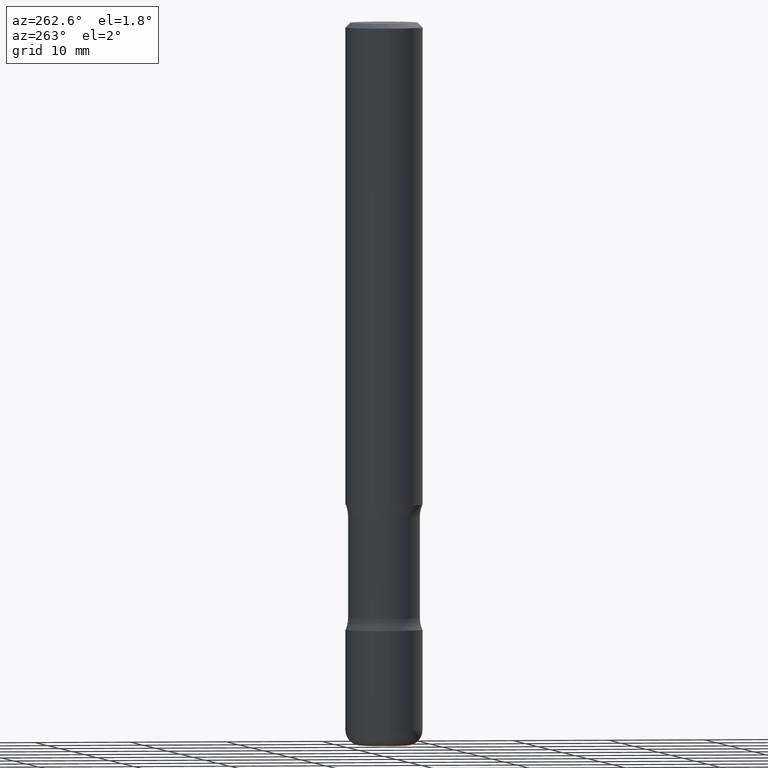
[diagram: clean part render]
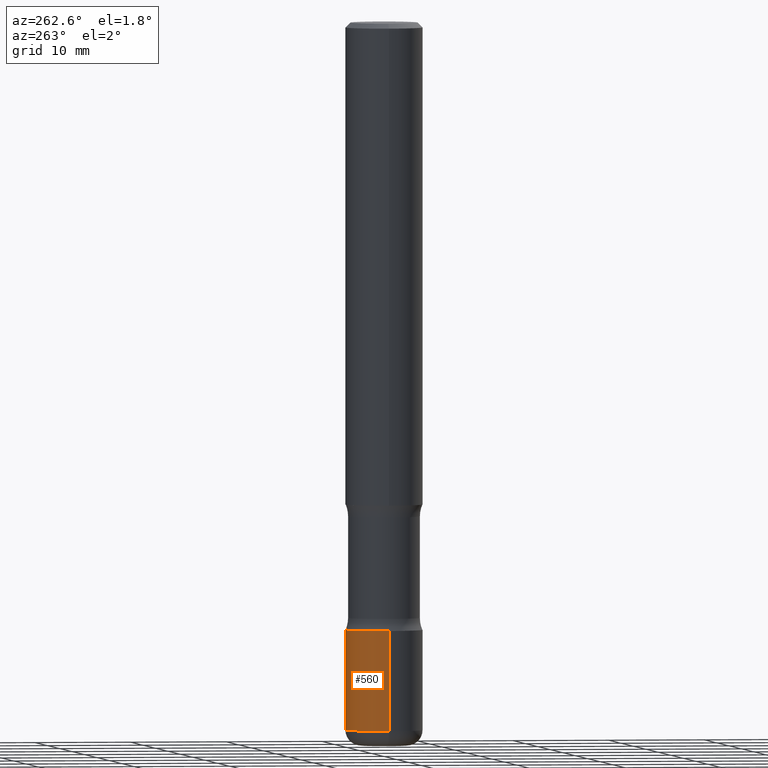
[diagram: same view with one face highlighted and labeled with its STEP entity id]
A machine part, auxiliary view. The second image highlights one B-rep face of the part: STEP entity #560.
In plain terms, the highlighted cylindrical surface (partial cylindrical patch) has radius 4.0005 mm, axis along (-0, 0, 1).
Its self-contained STEP definition (entity closure, byte-faithful):
#16 = CARTESIAN_POINT ( 'NONE',  ( 0.1575000000000003619, -1.118949939472451419E-14, -2.889800000000000590 ) ) ;
#19 = EDGE_CURVE ( 'NONE', #298, #250, #95, .T. ) ;
#40 = ORIENTED_EDGE ( 'NONE', *, *, #150, .T. ) ;
#48 = DIRECTION ( 'NONE',  ( 1.000000000000000000, -6.982962677686269866E-15, 0.000000000000000000 ) ) ;
#58 = FACE_OUTER_BOUND ( 'NONE', #142, .T. ) ;
#64 = VECTOR ( 'NONE', #397, 39.37007874015748143 ) ;
#68 = EDGE_CURVE ( 'NONE', #463, #298, #279, .T. ) ;
#71 = VERTEX_POINT ( 'NONE', #404 ) ;
#78 = AXIS2_PLACEMENT_3D ( 'NONE', #356, #265, #437 ) ;
#79 = DIRECTION ( 'NONE',  ( -2.445468806185136597E-29, 3.491481338843145583E-15, 1.000000000000000000 ) ) ;
#83 = CIRCLE ( 'NONE', #219, 0.1575000000000003897 ) ;
#93 = EDGE_CURVE ( 'NONE', #463, #71, #83, .T. ) ;
#95 = CIRCLE ( 'NONE', #123, 0.1575000000000003619 ) ;
#123 = AXIS2_PLACEMENT_3D ( 'NONE', #353, #136, #48 ) ;
#136 = DIRECTION ( 'NONE',  ( -2.445468806185136597E-29, 3.491481338843145583E-15, 1.000000000000000000 ) ) ;
#142 = EDGE_LOOP ( 'NONE', ( #510, #40, #163, #458 ) ) ;
#150 = EDGE_CURVE ( 'NONE', #71, #250, #485, .T. ) ;
#163 = ORIENTED_EDGE ( 'NONE', *, *, #19, .F. ) ;
#190 = CYLINDRICAL_SURFACE ( 'NONE', #78, 0.1575000000000003619 ) ;
#202 = CARTESIAN_POINT ( 'NONE',  ( 0.1575000000000003619, -1.099816621735589650E-15, 7.679978421878617651E-30 ) ) ;
#214 = CARTESIAN_POINT ( 'NONE',  ( 0.1575000000000003619, -9.760086934602128694E-15, -2.480399999999999938 ) ) ;
#219 = AXIS2_PLACEMENT_3D ( 'NONE', #467, #79, #446 ) ;
#233 = CARTESIAN_POINT ( 'NONE',  ( -0.1575000000000003619, 1.119104808822160364E-15, -7.747322767151495202E-30 ) ) ;
#250 = VERTEX_POINT ( 'NONE', #549 ) ;
#265 = DIRECTION ( 'NONE',  ( -2.445468806185136597E-29, 3.491481338843145583E-15, 1.000000000000000000 ) ) ;
#279 = LINE ( 'NONE', #202, #375 ) ;
#298 = VERTEX_POINT ( 'NONE', #214 ) ;
#353 = CARTESIAN_POINT ( 'NONE',  ( 6.065740826861613539E-29, -8.660270312866538847E-15, -2.480399999999999938 ) ) ;
#356 = CARTESIAN_POINT ( 'NONE',  ( 0.000000000000000000, 0.000000000000000000, 0.000000000000000000 ) ) ;
#375 = VECTOR ( 'NONE', #444, 39.37007874015748143 ) ;
#397 = DIRECTION ( 'NONE',  ( -2.445468806185136877E-29, 3.491481338843145188E-15, 1.000000000000000000 ) ) ;
#404 = CARTESIAN_POINT ( 'NONE',  ( -0.1575000000000003619, -8.970577964166765164E-15, -2.889800000000000590 ) ) ;
#437 = DIRECTION ( 'NONE',  ( 1.000000000000000000, -6.982962677686267499E-15, 4.876176775795936353E-29 ) ) ;
#444 = DIRECTION ( 'NONE',  ( -2.445468806185136877E-29, 3.491481338843145188E-15, 1.000000000000000000 ) ) ;
#446 = DIRECTION ( 'NONE',  ( 1.000000000000000000, -6.982962677686269077E-15, 0.000000000000000000 ) ) ;
#458 = ORIENTED_EDGE ( 'NONE', *, *, #68, .F. ) ;
#463 = VERTEX_POINT ( 'NONE', #16 ) ;
#467 = CARTESIAN_POINT ( 'NONE',  ( 7.066915756113808586E-29, -1.008968277298892435E-14, -2.889800000000000590 ) ) ;
#485 = LINE ( 'NONE', #233, #64 ) ;
#510 = ORIENTED_EDGE ( 'NONE', *, *, #93, .T. ) ;
#549 = CARTESIAN_POINT ( 'NONE',  ( -0.1575000000000003619, -8.255871734105570837E-15, -2.480399999999999938 ) ) ;
#560 = ADVANCED_FACE ( 'NONE', ( #58 ), #190, .T. ) ;